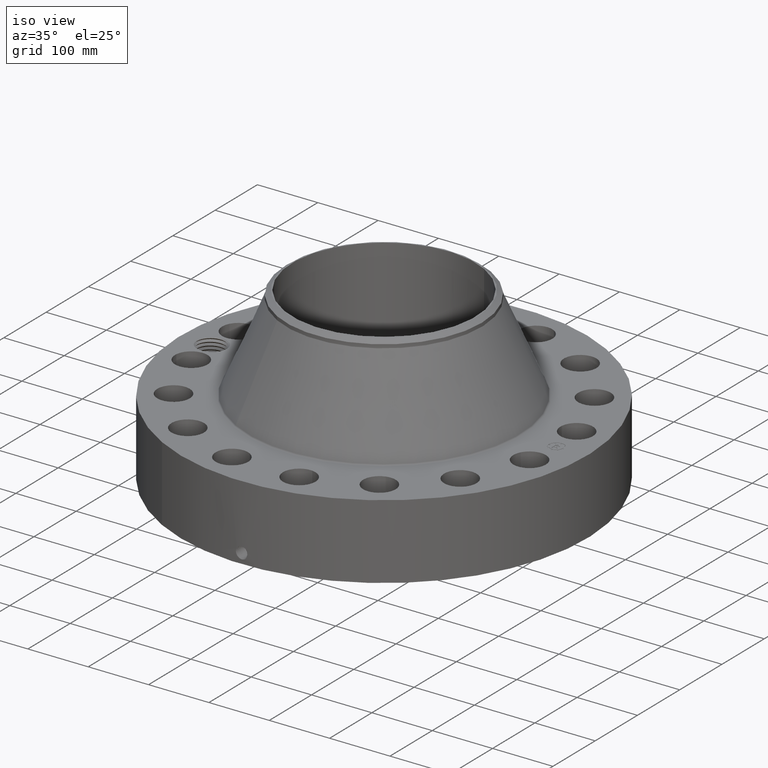
[diagram: clean part render]
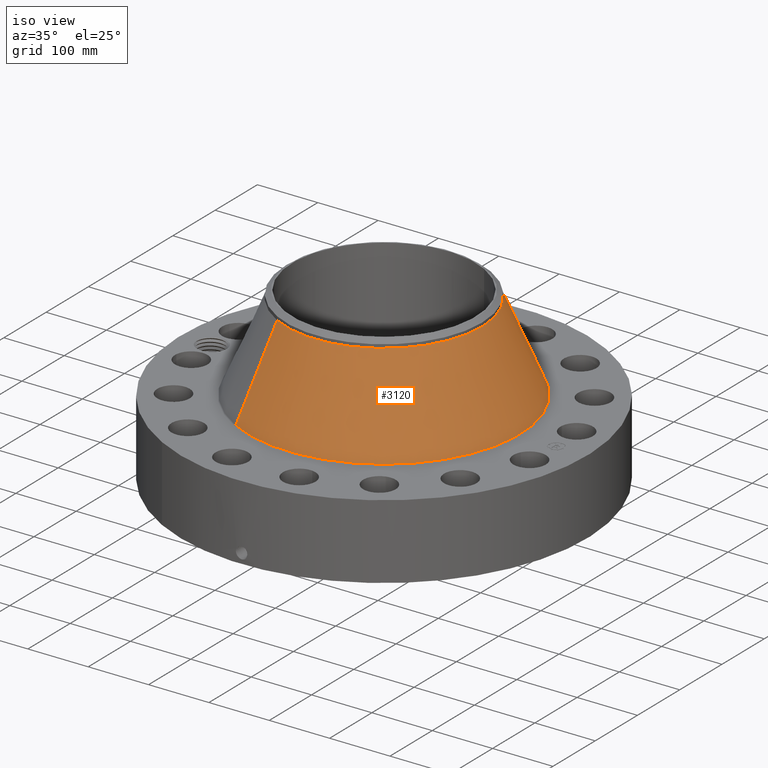
[diagram: same view with one face highlighted and labeled with its STEP entity id]
A machine part, iso view. The second image highlights one B-rep face of the part: STEP entity #3120.
In plain terms, the highlighted conical surface has half-angle 23.489 deg.
Its self-contained STEP definition (entity closure, byte-faithful):
#2359=AXIS2_PLACEMENT_3D('Circle Axis2P3D',#2357,#2358,$) ;
#3093=AXIS2_PLACEMENT_3D('Cone Axis2P3D',#3090,#3091,#3092) ;
#3104=AXIS2_PLACEMENT_3D('Circle Axis2P3D',#3102,#3103,$) ;
#2354=CARTESIAN_POINT('Vertex',(4.23986476901,7.76102040139,5.2021715051)) ;
#2357=CARTESIAN_POINT('Axis2P3D Location',(0.,0.,5.2021715051)) ;
#2361=CARTESIAN_POINT('Vertex',(-4.23986476901,-7.76102040139,5.2021715051)) ;
#3090=CARTESIAN_POINT('Axis2P3D Location',(0.,0.,10.8826642184)) ;
#3095=CARTESIAN_POINT('Line Origine',(3.64810128881,6.67780461673,8.04241786173)) ;
#3099=CARTESIAN_POINT('Vertex',(3.05633780861,5.59458883207,10.8826642184)) ;
#3102=CARTESIAN_POINT('Axis2P3D Location',(0.,0.,10.8826642184)) ;
#3106=CARTESIAN_POINT('Vertex',(-3.05633780861,-5.59458883207,10.8826642184)) ;
#3109=CARTESIAN_POINT('Line Origine',(-3.64810128881,-6.67780461673,8.04241786173)) ;
#2358=DIRECTION('Axis2P3D Direction',(0.,0.,-0.0393700787402)) ;
#3091=DIRECTION('Axis2P3D Direction',(0.,0.,-0.0393700787402)) ;
#3092=DIRECTION('Axis2P3D XDirection',(-0.0188750212049,-0.0345504945626,0.)) ;
#3096=DIRECTION('Vector Direction',(0.00752303213239,0.0137708179484,-0.0361077783943)) ;
#3103=DIRECTION('Axis2P3D Direction',(0.,0.,-0.0393700787402)) ;
#3110=DIRECTION('Vector Direction',(-0.00752303213239,-0.0137708179484,-0.0361077783943)) ;
#3097=VECTOR('Line Direction',#3096,0.0393700787402) ;
#3111=VECTOR('Line Direction',#3110,0.0393700787402) ;
#3115=ORIENTED_EDGE('',*,*,#2363,.F.) ;
#3116=ORIENTED_EDGE('',*,*,#3101,.T.) ;
#3117=ORIENTED_EDGE('',*,*,#3108,.T.) ;
#3118=ORIENTED_EDGE('',*,*,#3113,.F.) ;
#3120=ADVANCED_FACE('PartBody',(#3119),#3094,.T.) ;
#2360=CIRCLE('generated circle',#2359,8.84363561723) ;
#3105=CIRCLE('generated circle',#3104,6.37500000003) ;
#3094=CONICAL_SURFACE('Cone',#3093,6.37500000003,0.409957980891) ;
#2363=EDGE_CURVE('',#2355,#2362,#2360,.T.) ;
#3101=EDGE_CURVE('',#2355,#3100,#3098,.F.) ;
#3108=EDGE_CURVE('',#3100,#3107,#3105,.T.) ;
#3113=EDGE_CURVE('',#2362,#3107,#3112,.F.) ;
#3114=EDGE_LOOP('',(#3115,#3116,#3117,#3118)) ;
#3119=FACE_OUTER_BOUND('',#3114,.T.) ;
#3098=LINE('Line',#3095,#3097) ;
#3112=LINE('Line',#3109,#3111) ;
#2355=VERTEX_POINT('',#2354) ;
#2362=VERTEX_POINT('',#2361) ;
#3100=VERTEX_POINT('',#3099) ;
#3107=VERTEX_POINT('',#3106) ;